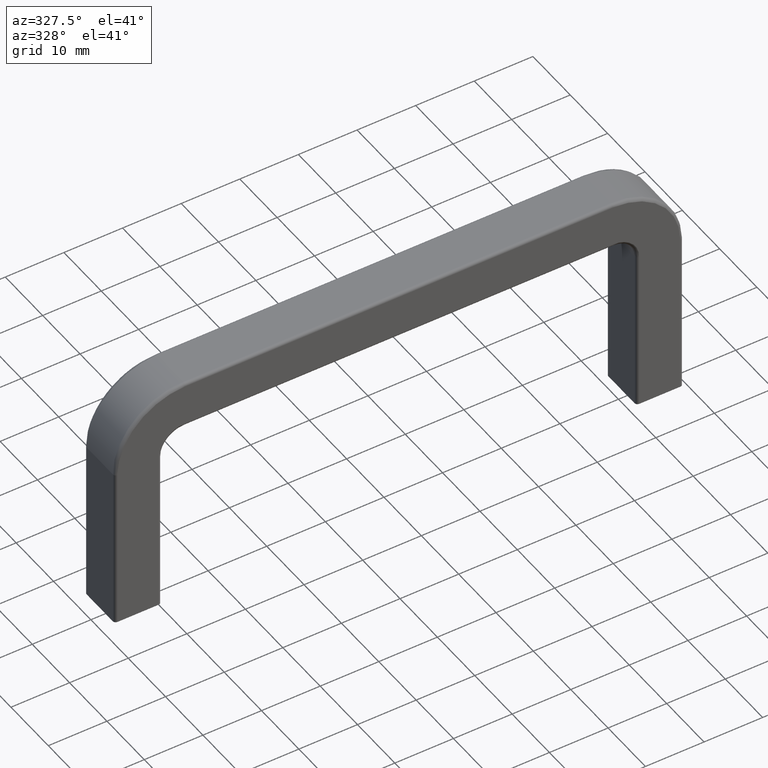
[diagram: clean part render]
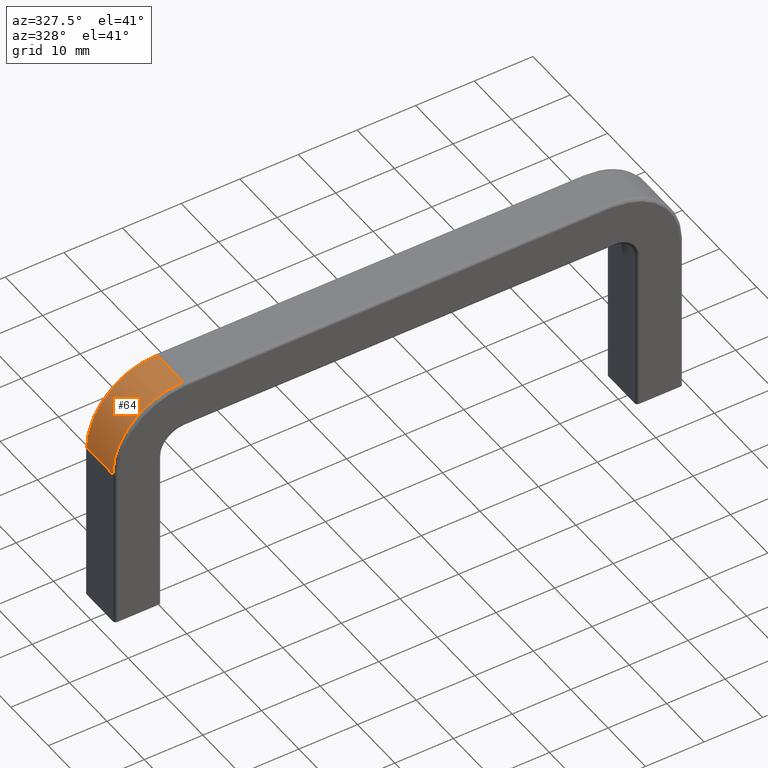
[diagram: same view with one face highlighted and labeled with its STEP entity id]
A machine part, auxiliary view. The second image highlights one B-rep face of the part: STEP entity #64.
In plain terms, the highlighted cylindrical surface (partial cylindrical patch) has radius 12 mm, axis along (-0, -1, -0).
Its self-contained STEP definition (entity closure, byte-faithful):
#64=ADVANCED_FACE('',(#321),#320,.T.);
#320=CYLINDRICAL_SURFACE('',#822,1.20000000000E+01);
#321=FACE_OUTER_BOUND('',#823,.T.);
#819=CARTESIAN_POINT('',(-3.65000000000E+01,-4.20000000000E+00,2.80000000000E+01));
#820=DIRECTION('',(-0.00000000000E+00,-1.00000000000E+00,-0.00000000000E+00));
#821=DIRECTION('',(7.25374371012E-01,-0.00000000000E+00,6.88354575694E-01));
#822=AXIS2_PLACEMENT_3D('',#819,#820,#821);
#823=EDGE_LOOP('',(#1024,#1025,#1026,#1027));
#1024=ORIENTED_EDGE('',*,*,#1178,.T.);
#1025=ORIENTED_EDGE('',*,*,#1139,.F.);
#1026=ORIENTED_EDGE('',*,*,#1131,.F.);
#1027=ORIENTED_EDGE('',*,*,#1179,.T.);
#1131=EDGE_CURVE('',#1307,#1293,#1314,.T.);
#1139=EDGE_CURVE('',#1293,#1348,#1367,.T.);
#1178=EDGE_CURVE('',#1622,#1348,#1623,.T.);
#1179=EDGE_CURVE('',#1307,#1622,#1629,.T.);
#1293=VERTEX_POINT('',#1877);
#1307=VERTEX_POINT('',#1887);
#1314=CIRCLE('',#1895,1.20000000000E+01);
#1348=VERTEX_POINT('',#1916);
#1367=LINE('',#1926,#1927);
#1622=VERTEX_POINT('',#2081);
#1623=CIRCLE('',#2085,1.20000000000E+01);
#1629=LINE('',#2086,#2087);
#1877=CARTESIAN_POINT('',(-3.65000000000E+01,3.50000000000E+00,4.00000000000E+01));
#1887=CARTESIAN_POINT('',(-4.85000000000E+01,3.50000000000E+00,2.80000000000E+01));
#1892=CARTESIAN_POINT('',(-3.65000000000E+01,3.50000000000E+00,2.80000000000E+01));
#1893=DIRECTION('',(0.00000000000E+00,1.00000000000E+00,0.00000000000E+00));
#1894=DIRECTION('',(1.00000000000E+00,-0.00000000000E+00,-5.92118946467E-16));
#1895=AXIS2_PLACEMENT_3D('',#1892,#1893,#1894);
#1916=CARTESIAN_POINT('',(-3.65000000000E+01,-3.50000000000E+00,4.00000000000E+01));
#1926=CARTESIAN_POINT('',(-3.65000000000E+01,3.50000000000E+00,4.00000000000E+01));
#1927=VECTOR('',#1928,7.00000000000E+00);
#1928=DIRECTION('',(0.00000000000E+00,-1.00000000000E+00,0.00000000000E+00));
#2081=CARTESIAN_POINT('',(-4.85000000000E+01,-3.50000000000E+00,2.80000000000E+01));
#2082=CARTESIAN_POINT('',(-3.65000000000E+01,-3.50000000000E+00,2.80000000000E+01));
#2083=DIRECTION('',(0.00000000000E+00,1.00000000000E+00,0.00000000000E+00));
#2084=DIRECTION('',(1.00000000000E+00,-0.00000000000E+00,-5.92118946467E-16));
#2085=AXIS2_PLACEMENT_3D('',#2082,#2083,#2084);
#2086=CARTESIAN_POINT('',(-4.85000000000E+01,3.50000000000E+00,2.80000000000E+01));
#2087=VECTOR('',#2088,7.00000000000E+00);
#2088=DIRECTION('',(0.00000000000E+00,-1.00000000000E+00,0.00000000000E+00));